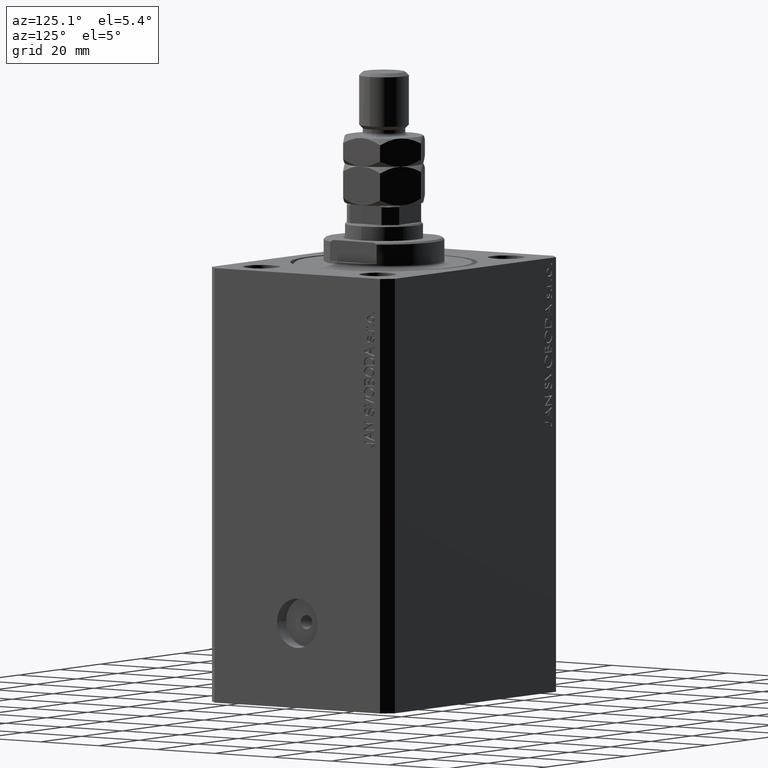
[diagram: clean part render]
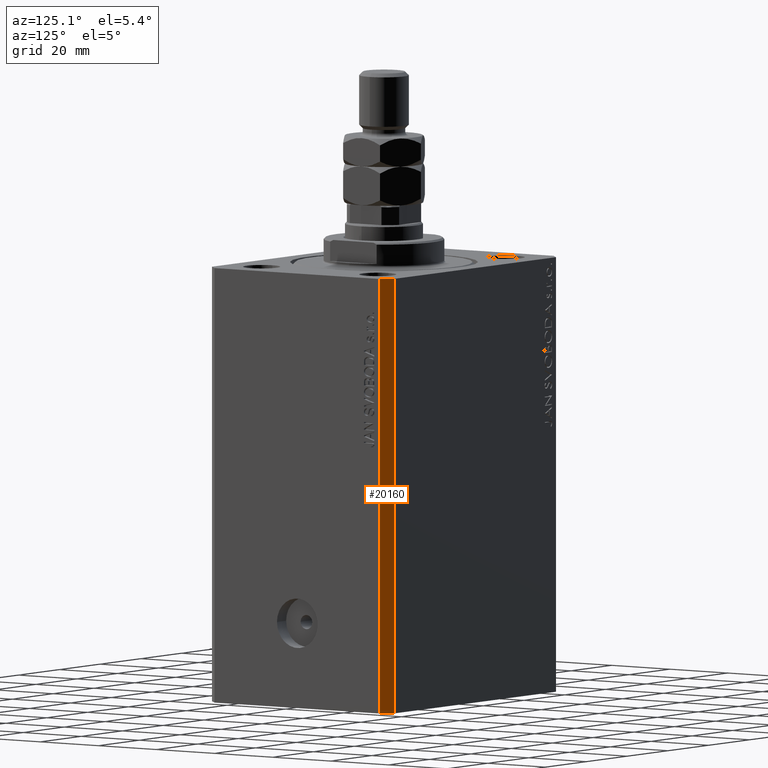
[diagram: same view with one face highlighted and labeled with its STEP entity id]
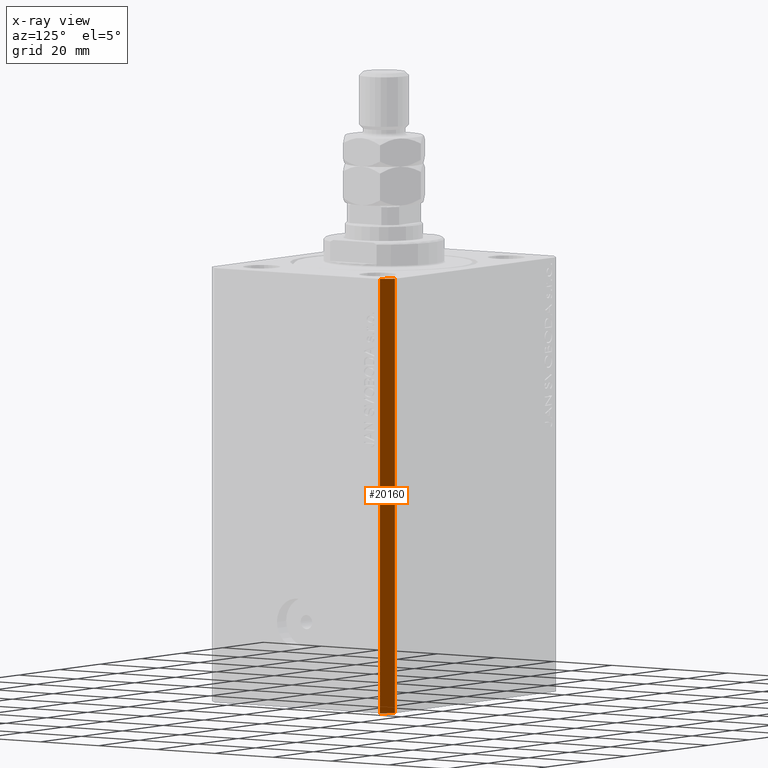
[diagram: x-ray of the same camera — body ghosted, the highlighted face saturated]
A machine part, auxiliary view. The second image highlights one B-rep face of the part: STEP entity #20160.
The next image is the same camera in x-ray: the body ghosted, the highlighted face saturated — about 0% of this face is hidden behind the body in this view.
In plain terms, the highlighted planar face has unit normal (0.7071, 0.7071, 0).
Its self-contained STEP definition (entity closure, byte-faithful):
#767 = CARTESIAN_POINT ( 'NONE',  ( 42.50000000000051870, 28.49999999999995381, -123.0000000000000000 ) ) ;
#1523 = EDGE_CURVE ( 'NONE', #10579, #44677, #37316, .T. ) ;
#1920 = CARTESIAN_POINT ( 'NONE',  ( 42.50000000000051870, 28.49999999999995381, -123.0000000000000000 ) ) ;
#2915 = EDGE_CURVE ( 'NONE', #43728, #44677, #40674, .T. ) ;
#3317 = DIRECTION ( 'NONE',  ( -0.7071067811865356934, 0.7071067811865594521, 0.000000000000000000 ) ) ;
#5807 = EDGE_CURVE ( 'NONE', #24549, #10579, #39550, .T. ) ;
#7536 = FACE_OUTER_BOUND ( 'NONE', #40394, .T. ) ;
#7991 = DIRECTION ( 'NONE',  ( -0.7071067811865355823, 0.7071067811865594521, 0.000000000000000000 ) ) ;
#9508 = DIRECTION ( 'NONE',  ( -0.7071067811865356934, 0.7071067811865594521, 0.000000000000000000 ) ) ;
#10579 = VERTEX_POINT ( 'NONE', #42848 ) ;
#11213 = VECTOR ( 'NONE', #3317, 1000.000000000000114 ) ;
#11500 = DIRECTION ( 'NONE',  ( 0.7071067811865594521, 0.7071067811865355823, -0.000000000000000000 ) ) ;
#13193 = ORIENTED_EDGE ( 'NONE', *, *, #16257, .T. ) ;
#16257 = EDGE_CURVE ( 'NONE', #24549, #43728, #45577, .T. ) ;
#18723 = PLANE ( 'NONE',  #32832 ) ;
#20160 = ADVANCED_FACE ( 'NONE', ( #7536 ), #18723, .T. ) ;
#20951 = CARTESIAN_POINT ( 'NONE',  ( 42.50000000000051870, 28.49999999999995381, -123.0000000000000000 ) ) ;
#22739 = VECTOR ( 'NONE', #45462, 1000.000000000000000 ) ;
#24549 = VERTEX_POINT ( 'NONE', #1920 ) ;
#26808 = CARTESIAN_POINT ( 'NONE',  ( 42.50000000000051870, 28.49999999999995381, 0.000000000000000000 ) ) ;
#29658 = CARTESIAN_POINT ( 'NONE',  ( 39.50000000000056843, 31.50000000000000000, 0.000000000000000000 ) ) ;
#31089 = ORIENTED_EDGE ( 'NONE', *, *, #5807, .F. ) ;
#32832 = AXIS2_PLACEMENT_3D ( 'NONE', #767, #11500, #7991 ) ;
#34358 = CARTESIAN_POINT ( 'NONE',  ( 39.50000000000056843, 31.50000000000000000, -123.0000000000000000 ) ) ;
#37316 = LINE ( 'NONE', #26808, #42867 ) ;
#37718 = ORIENTED_EDGE ( 'NONE', *, *, #2915, .T. ) ;
#39550 = LINE ( 'NONE', #20951, #22739 ) ;
#40394 = EDGE_LOOP ( 'NONE', ( #44951, #31089, #13193, #37718 ) ) ;
#40674 = LINE ( 'NONE', #34358, #45019 ) ;
#41839 = CARTESIAN_POINT ( 'NONE',  ( 42.50000000000051870, 28.49999999999995381, -123.0000000000000000 ) ) ;
#42536 = CARTESIAN_POINT ( 'NONE',  ( 39.50000000000056843, 31.50000000000000000, -123.0000000000000000 ) ) ;
#42848 = CARTESIAN_POINT ( 'NONE',  ( 42.50000000000051870, 28.49999999999995381, 0.000000000000000000 ) ) ;
#42867 = VECTOR ( 'NONE', #9508, 1000.000000000000114 ) ;
#43728 = VERTEX_POINT ( 'NONE', #42536 ) ;
#44677 = VERTEX_POINT ( 'NONE', #29658 ) ;
#44859 = DIRECTION ( 'NONE',  ( 0.000000000000000000, 0.000000000000000000, 1.000000000000000000 ) ) ;
#44951 = ORIENTED_EDGE ( 'NONE', *, *, #1523, .F. ) ;
#45019 = VECTOR ( 'NONE', #44859, 1000.000000000000000 ) ;
#45462 = DIRECTION ( 'NONE',  ( 0.000000000000000000, 0.000000000000000000, 1.000000000000000000 ) ) ;
#45577 = LINE ( 'NONE', #41839, #11213 ) ;